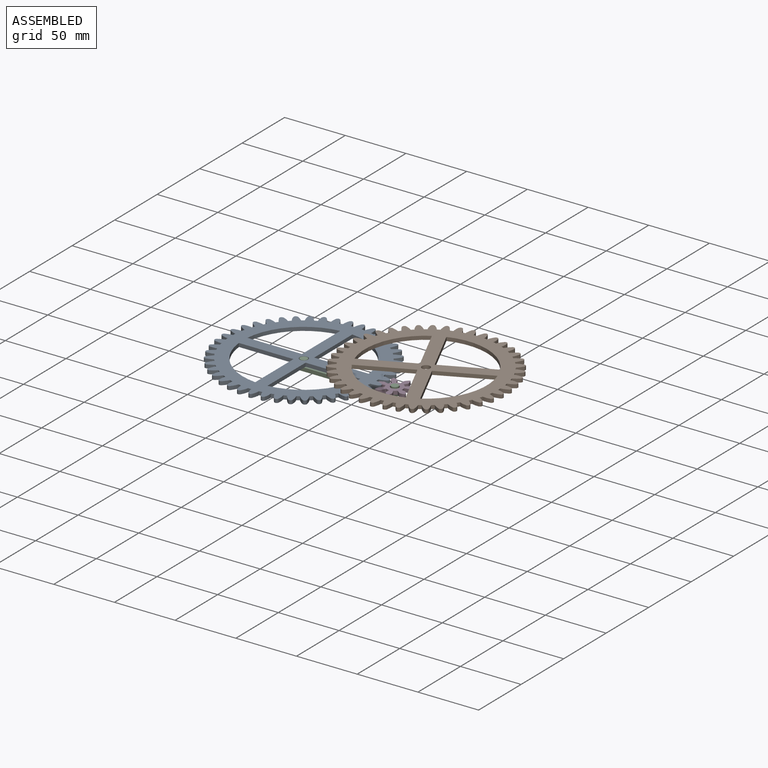
[diagram: assembled view]
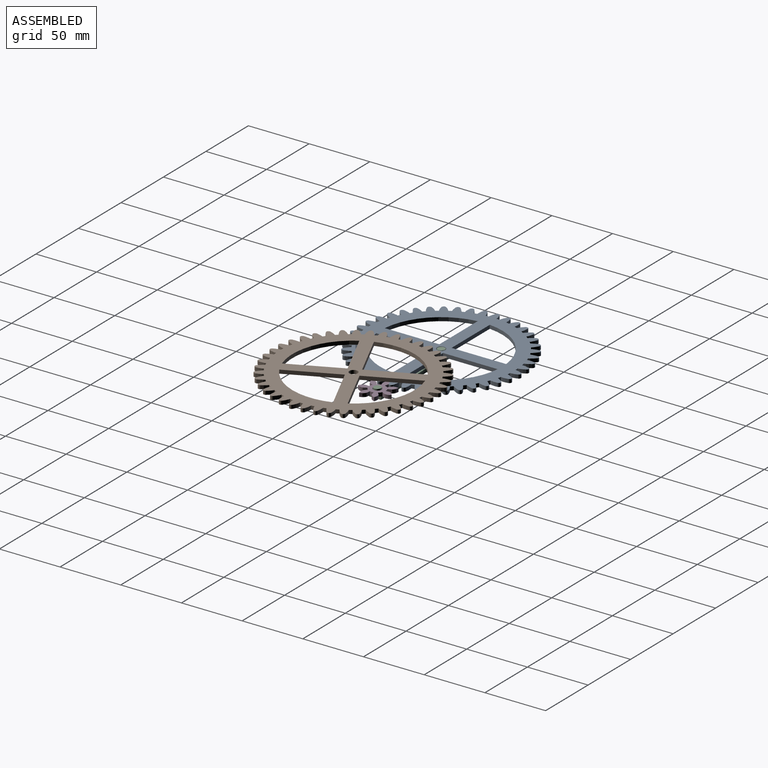
[diagram: assembled view, second angle]
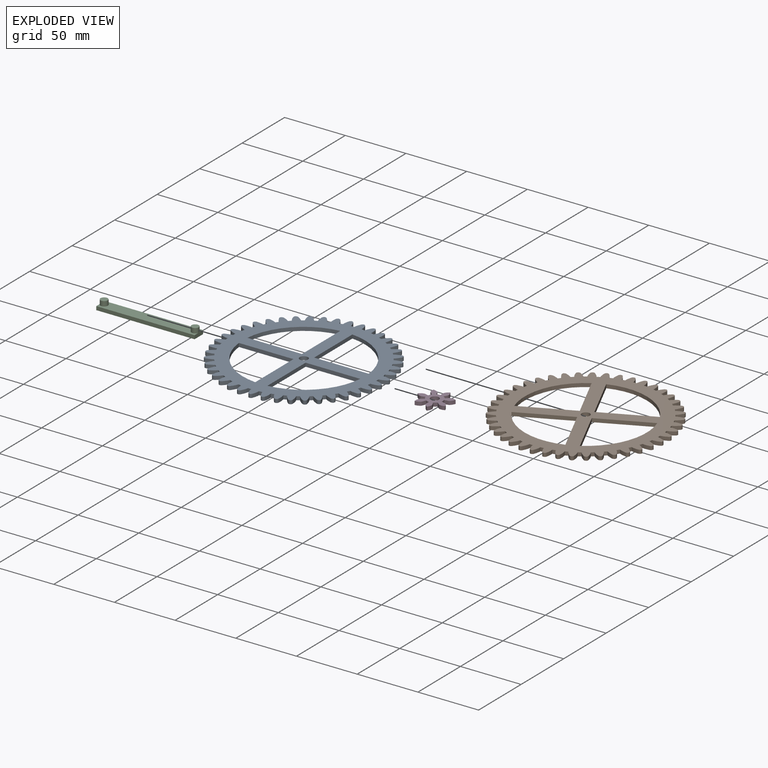
[diagram: exploded view]
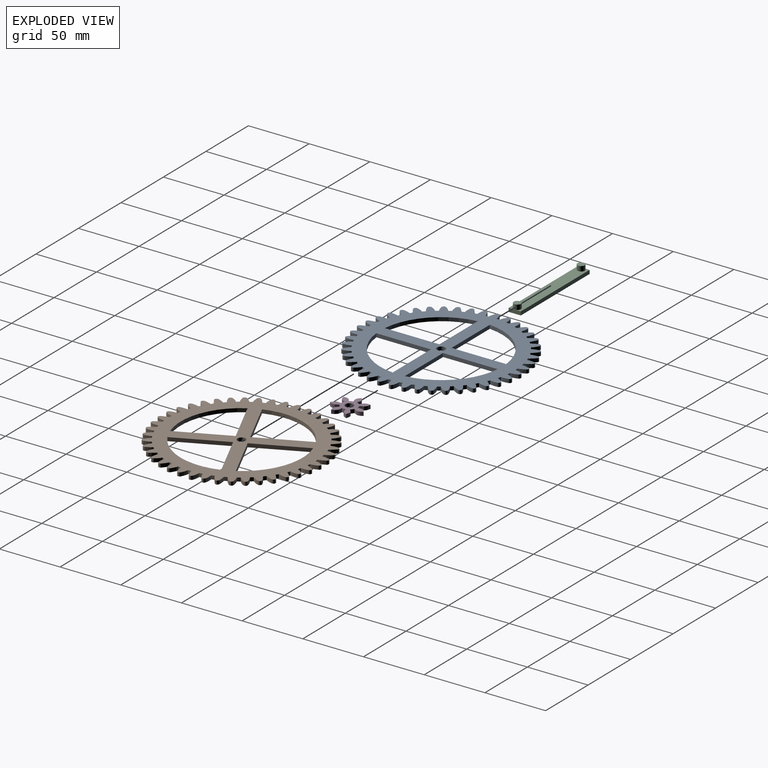
[diagram: exploded view, second angle]
ASSEMBLY  parts=3 mates=2
PART A: 230 faces, bbox 134.8x134.9x3 mm
  f0: plane 134.9x134.81mm, normal (0,0,1), area 6850.2mm2, adj f2,f3,f4,f5,f6,f7,f8,f9
  f1: plane 134.9x134.81mm, normal (0,0,-1), area 6850.2mm2, adj f2,f3,f4,f5,f6,f7,f8,f9
  f2: cylinder r=60.61mm len=3mm, axis (0,0,-1), area 7.9mm2, adj f0,f1,f210,f215
  f3: cylinder r=60.61mm len=3mm, axis (0,0,-1), area 7.9mm2, adj f0,f1,f206,f211
  f4: cylinder r=60.61mm len=3mm, axis (0,0,-1), area 7.9mm2, adj f0,f1,f202,f207
  f5: cylinder r=60.61mm len=3mm, axis (0,0,-1), area 7.9mm2, adj f0,f1,f198,f203
  f6: cylinder r=60.61mm len=3mm, axis (0,0,-1), area 7.9mm2, adj f0,f1,f194,f199
  f7: cylinder r=60.61mm len=3mm, axis (0,0,-1), area 7.9mm2, adj f0,f1,f190,f195
  f8: cylinder r=60.61mm len=3mm, axis (0,0,-1), area 7.9mm2, adj f0,f1,f186,f191
  f9: cylinder r=60.61mm len=3mm, axis (0,0,-1), area 7.9mm2, adj f0,f1,f182,f187
  f10: cylinder r=60.61mm len=3mm, axis (0,0,-1), area 7.9mm2, adj f0,f1,f178,f183
  f11: cylinder r=60.61mm len=3mm, axis (0,0,-1), area 7.9mm2, adj f0,f1,f174,f179
  f12: cylinder r=60.61mm len=3mm, axis (0,0,-1), area 7.9mm2, adj f0,f1,f170,f175
  f13: cylinder r=60.61mm len=3mm, axis (0,0,-1), area 7.9mm2, adj f0,f1,f166,f171
  f14: cylinder r=60.61mm len=3mm, axis (0,0,-1), area 7.9mm2, adj f0,f1,f162,f167
  f15: cylinder r=60.61mm len=3mm, axis (0,0,-1), area 7.9mm2, adj f0,f1,f158,f163
  f16: cylinder r=60.61mm len=3mm, axis (0,0,-1), area 7.9mm2, adj f0,f1,f154,f159
  f17: cylinder r=60.61mm len=3mm, axis (0,0,-1), area 7.9mm2, adj f0,f1,f150,f155
  f18: cylinder r=60.61mm len=3mm, axis (0,0,-1), area 7.9mm2, adj f0,f1,f146,f151
  f19: cylinder r=60.61mm len=3mm, axis (0,0,-1), area 7.9mm2, adj f0,f1,f142,f147
  f20: cylinder r=60.61mm len=3mm, axis (0,0,-1), area 7.9mm2, adj f0,f1,f138,f143
  f21: cylinder r=60.61mm len=3mm, axis (0,0,-1), area 7.9mm2, adj f0,f1,f134,f139
  f22: cylinder r=60.61mm len=3mm, axis (0,0,-1), area 7.9mm2, adj f0,f1,f130,f135
  f23: cylinder r=60.61mm len=3mm, axis (0,0,-1), area 7.9mm2, adj f0,f1,f126,f131
  f24: cylinder r=60.61mm len=3mm, axis (0,0,-1), area 7.9mm2, adj f0,f1,f122,f127
  f25: cylinder r=60.61mm len=3mm, axis (0,0,-1), area 7.9mm2, adj f0,f1,f118,f123
  f26: cylinder r=60.61mm len=3mm, axis (0,0,-1), area 7.9mm2, adj f0,f1,f114,f119
  f27: cylinder r=60.61mm len=3mm, axis (0,0,-1), area 7.9mm2, adj f0,f1,f110,f115
  f28: cylinder r=60.61mm len=3mm, axis (0,0,-1), area 7.9mm2, adj f0,f1,f106,f111
  f29: cylinder r=60.61mm len=3mm, axis (0,0,-1), area 7.9mm2, adj f0,f1,f102,f107
  f30: cylinder r=60.61mm len=3mm, axis (0,0,-1), area 7.9mm2, adj f0,f1,f98,f103
  f31: cylinder r=60.61mm len=3mm, axis (0,0,-1), area 7.9mm2, adj f0,f1,f94,f99
  f32: cylinder r=60.61mm len=3mm, axis (0,0,-1), area 7.9mm2, adj f0,f1,f90,f95
  f33: cylinder r=60.61mm len=3mm, axis (0,0,-1), area 7.9mm2, adj f0,f1,f86,f91
  f34: cylinder r=60.61mm len=3mm, axis (0,0,-1), area 7.9mm2, adj f0,f1,f82,f87
  f35: cylinder r=60.61mm len=3mm, axis (0,0,-1), area 7.9mm2, adj f0,f1,f78,f83
  f36: cylinder r=60.61mm len=3mm, axis (0,0,-1), area 7.9mm2, adj f0,f1,f74,f79
  f37: cylinder r=60.61mm len=3mm, axis (0,0,-1), area 7.9mm2, adj f0,f1,f70,f75
  f38: cylinder r=60.61mm len=3mm, axis (0,0,-1), area 7.9mm2, adj f0,f1,f66,f71
  f39: cylinder r=60.61mm len=3mm, axis (0,0,-1), area 7.9mm2, adj f0,f1,f62,f67
  f40: cylinder r=60.61mm len=3mm, axis (0,0,-1), area 7.9mm2, adj f0,f1,f58,f63
  f41: cylinder r=60.61mm len=3mm, axis (0,0,-1), area 7.9mm2, adj f0,f1,f54,f59
  f42: cylinder r=60.61mm len=3mm, axis (0,0,-1), area 7.9mm2, adj f0,f1,f50,f55
  f43: cylinder r=60.61mm len=3mm, axis (0,0,-1), area 7.9mm2, adj f0,f1,f46,f51
  f44: cylinder r=60.61mm len=3mm, axis (0,0,-1), area 7.9mm2, adj f0,f1,f47,f214
  f45: cylinder r=3.4mm len=6.8mm, axis (0,0,-1), area 64.1mm2, adj f0,f1
  f46: extruded ~5.78x3mm, area 17.8mm2, adj f0,f1,f43,f49
  f47: extruded ~5.68x3mm, area 17.8mm2, adj f0,f1,f44,f48
  f48: cylinder r=2mm len=3mm, axis (0,0,-1), area 6.6mm2, adj f0,f1,f47,f49
  f49: cylinder r=2mm len=3mm, axis (0,0,-1), area 6.6mm2, adj f0,f1,f46,f48
  f50: extruded ~5.9x3mm, area 17.8mm2, adj f0,f1,f42,f53
  f51: extruded ~5.38x3mm, area 17.8mm2, adj f0,f1,f43,f52
  f52: cylinder r=2mm len=3mm, axis (0,0,-1), area 6.6mm2, adj f0,f1,f51,f53
  f53: cylinder r=2mm len=3mm, axis (0,0,-1), area 6.6mm2, adj f0,f1,f50,f52
  f54: extruded ~5.88x3mm, area 17.8mm2, adj f0,f1,f41,f57
  f55: extruded ~4.96x3.2mm, area 17.8mm2, adj f0,f1,f42,f56
  f56: cylinder r=2mm len=3mm, axis (0,0,-1), area 6.6mm2, adj f0,f1,f55,f57
  f57: cylinder r=2mm len=3mm, axis (0,0,-1), area 6.6mm2, adj f0,f1,f54,f56
  f58: extruded ~5.75x3mm, area 17.8mm2, adj f0,f1,f40,f61
  f59: extruded ~4.45x3.89mm, area 17.8mm2, adj f0,f1,f41,f60
  f60: cylinder r=2mm len=3mm, axis (0,0,-1), area 6.6mm2, adj f0,f1,f59,f61
  f61: cylinder r=2mm len=3mm, axis (0,0,-1), area 6.6mm2, adj f0,f1,f58,f60
  f62: extruded ~5.49x3mm, area 17.8mm2, adj f0,f1,f39,f65
  f63: extruded ~4.49x3.83mm, area 17.8mm2, adj f0,f1,f40,f64
  f64: cylinder r=2mm len=3mm, axis (0,0,-1), area 6.6mm2, adj f0,f1,f63,f65
  f65: cylinder r=2mm len=3mm, axis (0,0,-1), area 6.6mm2, adj f0,f1,f62,f64
  f66: extruded ~5.12x3mm, area 17.8mm2, adj f0,f1,f38,f69
  f67: extruded ~5x3.14mm, area 17.8mm2, adj f0,f1,f39,f68
  f68: cylinder r=2mm len=3mm, axis (0,0,-1), area 6.6mm2, adj f0,f1,f67,f69
  f69: cylinder r=2mm len=3mm, axis (0,0,-1), area 6.6mm2, adj f0,f1,f66,f68
  f70: extruded ~4.63x3.67mm, area 17.8mm2, adj f0,f1,f37,f73
  f71: extruded ~5.41x3mm, area 17.8mm2, adj f0,f1,f38,f72
  f72: cylinder r=2mm len=3mm, axis (0,0,-1), area 6.6mm2, adj f0,f1,f71,f73
  f73: cylinder r=2mm len=3mm, axis (0,0,-1), area 6.6mm2, adj f0,f1,f70,f72
  f74: extruded ~4.3x4.05mm, area 17.8mm2, adj f0,f1,f36,f77
  f75: extruded ~5.7x3mm, area 17.8mm2, adj f0,f1,f37,f76
  f76: cylinder r=2mm len=3mm, axis (0,0,-1), area 6.6mm2, adj f0,f1,f75,f77
  f77: cylinder r=2mm len=3mm, axis (0,0,-1), area 6.6mm2, adj f0,f1,f74,f76
  f78: extruded ~4.84x3.38mm, area 17.8mm2, adj f0,f1,f35,f81
  f79: extruded ~5.86x3mm, area 17.8mm2, adj f0,f1,f36,f80
  f80: cylinder r=2mm len=3mm, axis (0,0,-1), area 6.6mm2, adj f0,f1,f79,f81
  f81: cylinder r=2mm len=3mm, axis (0,0,-1), area 6.6mm2, adj f0,f1,f78,f80
  f82: extruded ~5.28x3mm, area 17.8mm2, adj f0,f1,f34,f85
  f83: extruded ~5.9x3mm, area 17.8mm2, adj f0,f1,f35,f84
  f84: cylinder r=2mm len=3mm, axis (0,0,-1), area 6.6mm2, adj f0,f1,f83,f85
  f85: cylinder r=2mm len=3mm, axis (0,0,-1), area 6.6mm2, adj f0,f1,f82,f84
  f86: extruded ~5.61x3mm, area 17.8mm2, adj f0,f1,f33,f89
  f87: extruded ~5.82x3mm, area 17.8mm2, adj f0,f1,f34,f88
  f88: cylinder r=2mm len=3mm, axis (0,0,-1), area 6.6mm2, adj f0,f1,f87,f89
  f89: cylinder r=2mm len=3mm, axis (0,0,-1), area 6.6mm2, adj f0,f1,f86,f88
  f90: extruded ~5.82x3mm, area 17.8mm2, adj f0,f1,f32,f93
  f91: extruded ~5.61x3mm, area 17.8mm2, adj f0,f1,f33,f92
  f92: cylinder r=2mm len=3mm, axis (0,0,-1), area 6.6mm2, adj f0,f1,f91,f93
  f93: cylinder r=2mm len=3mm, axis (0,0,-1), area 6.6mm2, adj f0,f1,f90,f92
  f94: extruded ~5.9x3mm, area 17.8mm2, adj f0,f1,f31,f97
  f95: extruded ~5.28x3mm, area 17.8mm2, adj f0,f1,f32,f96
  f96: cylinder r=2mm len=3mm, axis (0,0,-1), area 6.6mm2, adj f0,f1,f95,f97
  f97: cylinder r=2mm len=3mm, axis (0,0,-1), area 6.6mm2, adj f0,f1,f94,f96
  f98: extruded ~5.86x3mm, area 17.8mm2, adj f0,f1,f30,f101
  f99: extruded ~4.84x3.38mm, area 17.8mm2, adj f0,f1,f31,f100
  f100: cylinder r=2mm len=3mm, axis (0,0,-1), area 6.6mm2, adj f0,f1,f99,f101
  f101: cylinder r=2mm len=3mm, axis (0,0,-1), area 6.6mm2, adj f0,f1,f98,f100
  f102: extruded ~5.7x3mm, area 17.8mm2, adj f0,f1,f29,f105
  f103: extruded ~4.3x4.05mm, area 17.8mm2, adj f0,f1,f30,f104
  f104: cylinder r=2mm len=3mm, axis (0,0,-1), area 6.6mm2, adj f0,f1,f103,f105
  f105: cylinder r=2mm len=3mm, axis (0,0,-1), area 6.6mm2, adj f0,f1,f102,f104
  f106: extruded ~5.41x3mm, area 17.8mm2, adj f0,f1,f28,f109
  f107: extruded ~4.63x3.67mm, area 17.8mm2, adj f0,f1,f29,f108
  f108: cylinder r=2mm len=3mm, axis (0,0,-1), area 6.6mm2, adj f0,f1,f107,f109
  f109: cylinder r=2mm len=3mm, axis (0,0,-1), area 6.6mm2, adj f0,f1,f106,f108
  f110: extruded ~5x3.14mm, area 17.8mm2, adj f0,f1,f27,f113
  f111: extruded ~5.12x3mm, area 17.8mm2, adj f0,f1,f28,f112
  f112: cylinder r=2mm len=3mm, axis (0,0,-1), area 6.6mm2, adj f0,f1,f111,f113
  f113: cylinder r=2mm len=3mm, axis (0,0,-1), area 6.6mm2, adj f0,f1,f110,f112
  f114: extruded ~4.49x3.83mm, area 17.8mm2, adj f0,f1,f26,f117
  f115: extruded ~5.49x3mm, area 17.8mm2, adj f0,f1,f27,f116
  f116: cylinder r=2mm len=3mm, axis (0,0,-1), area 6.6mm2, adj f0,f1,f115,f117
  f117: cylinder r=2mm len=3mm, axis (0,0,-1), area 6.6mm2, adj f0,f1,f114,f116
  f118: extruded ~4.45x3.89mm, area 17.8mm2, adj f0,f1,f25,f121
  f119: extruded ~5.75x3mm, area 17.8mm2, adj f0,f1,f26,f120
  f120: cylinder r=2mm len=3mm, axis (0,0,-1), area 6.6mm2, adj f0,f1,f119,f121
  f121: cylinder r=2mm len=3mm, axis (0,0,-1), area 6.6mm2, adj f0,f1,f118,f120
  f122: extruded ~4.96x3.2mm, area 17.8mm2, adj f0,f1,f24,f125
  f123: extruded ~5.88x3mm, area 17.8mm2, adj f0,f1,f25,f124
  f124: cylinder r=2mm len=3mm, axis (0,0,-1), area 6.6mm2, adj f0,f1,f123,f125
  f125: cylinder r=2mm len=3mm, axis (0,0,-1), area 6.6mm2, adj f0,f1,f122,f124
  f126: extruded ~5.38x3mm, area 17.8mm2, adj f0,f1,f23,f129
  f127: extruded ~5.9x3mm, area 17.8mm2, adj f0,f1,f24,f128
  f128: cylinder r=2mm len=3mm, axis (0,0,-1), area 6.6mm2, adj f0,f1,f127,f129
  f129: cylinder r=2mm len=3mm, axis (0,0,-1), area 6.6mm2, adj f0,f1,f126,f128
  f130: extruded ~5.68x3mm, area 17.8mm2, adj f0,f1,f22,f133
  f131: extruded ~5.78x3mm, area 17.8mm2, adj f0,f1,f23,f132
  f132: cylinder r=2mm len=3mm, axis (0,0,-1), area 6.6mm2, adj f0,f1,f131,f133
  f133: cylinder r=2mm len=3mm, axis (0,0,-1), area 6.6mm2, adj f0,f1,f130,f132
  f134: extruded ~5.85x3mm, area 17.8mm2, adj f0,f1,f21,f137
  f135: extruded ~5.54x3mm, area 17.8mm2, adj f0,f1,f22,f136
  f136: cylinder r=2mm len=3mm, axis (0,0,-1), area 6.6mm2, adj f0,f1,f135,f137
  f137: cylinder r=2mm len=3mm, axis (0,0,-1), area 6.6mm2, adj f0,f1,f134,f136
  f138: extruded ~5.91x3mm, area 17.8mm2, adj f0,f1,f20,f141
  f139: extruded ~5.18x3mm, area 17.8mm2, adj f0,f1,f21,f140
  f140: cylinder r=2mm len=3mm, axis (0,0,-1), area 6.6mm2, adj f0,f1,f139,f141
  f141: cylinder r=2mm len=3mm, axis (0,0,-1), area 6.6mm2, adj f0,f1,f138,f140
  f142: extruded ~5.83x3mm, area 17.8mm2, adj f0,f1,f19,f145
  f143: extruded ~4.72x3.55mm, area 17.8mm2, adj f0,f1,f20,f144
  f144: cylinder r=2mm len=3mm, axis (0,0,-1), area 6.6mm2, adj f0,f1,f143,f145
  f145: cylinder r=2mm len=3mm, axis (0,0,-1), area 6.6mm2, adj f0,f1,f142,f144
  f146: extruded ~5.63x3mm, area 17.8mm2, adj f0,f1,f18,f149
  f147: extruded ~4.2x4.15mm, area 17.8mm2, adj f0,f1,f19,f148
  f148: cylinder r=2mm len=3mm, axis (0,0,-1), area 6.6mm2, adj f0,f1,f147,f149
  f149: cylinder r=2mm len=3mm, axis (0,0,-1), area 6.6mm2, adj f0,f1,f146,f148
  f150: extruded ~5.32x3mm, area 17.8mm2, adj f0,f1,f17,f153
  f151: extruded ~4.76x3.49mm, area 17.8mm2, adj f0,f1,f18,f152
  f152: cylinder r=2mm len=3mm, axis (0,0,-1), area 6.6mm2, adj f0,f1,f151,f153
  f153: cylinder r=2mm len=3mm, axis (0,0,-1), area 6.6mm2, adj f0,f1,f150,f152
  f154: extruded ~4.89x3.32mm, area 17.8mm2, adj f0,f1,f16,f157
  f155: extruded ~5.22x3mm, area 17.8mm2, adj f0,f1,f17,f156
  f156: cylinder r=2mm len=3mm, axis (0,0,-1), area 6.6mm2, adj f0,f1,f155,f157
  f157: cylinder r=2mm len=3mm, axis (0,0,-1), area 6.6mm2, adj f0,f1,f154,f156
  f158: extruded ~4.35x3.99mm, area 17.8mm2, adj f0,f1,f15,f161
  f159: extruded ~5.57x3mm, area 17.8mm2, adj f0,f1,f16,f160
  f160: cylinder r=2mm len=3mm, axis (0,0,-1), area 6.6mm2, adj f0,f1,f159,f161
  f161: cylinder r=2mm len=3mm, axis (0,0,-1), area 6.6mm2, adj f0,f1,f158,f160
  f162: extruded ~4.58x3.72mm, area 17.8mm2, adj f0,f1,f14,f165
  f163: extruded ~5.79x3mm, area 17.8mm2, adj f0,f1,f15,f164
  f164: cylinder r=2mm len=3mm, axis (0,0,-1), area 6.6mm2, adj f0,f1,f163,f165
  f165: cylinder r=2mm len=3mm, axis (0,0,-1), area 6.6mm2, adj f0,f1,f162,f164
  f166: extruded ~5.08x3.02mm, area 17.8mm2, adj f0,f1,f13,f169
  f167: extruded ~5.9x3mm, area 17.8mm2, adj f0,f1,f14,f168
  f168: cylinder r=2mm len=3mm, axis (0,0,-1), area 6.6mm2, adj f0,f1,f167,f169
  f169: cylinder r=2mm len=3mm, axis (0,0,-1), area 6.6mm2, adj f0,f1,f166,f168
  f170: extruded ~5.46x3mm, area 17.8mm2, adj f0,f1,f12,f173
  f171: extruded ~5.88x3mm, area 17.8mm2, adj f0,f1,f13,f172
  f172: cylinder r=2mm len=3mm, axis (0,0,-1), area 6.6mm2, adj f0,f1,f171,f173
  f173: cylinder r=2mm len=3mm, axis (0,0,-1), area 6.6mm2, adj f0,f1,f170,f172
  f174: extruded ~5.73x3mm, area 17.8mm2, adj f0,f1,f11,f177
  f175: extruded ~5.73x3mm, area 17.8mm2, adj f0,f1,f12,f176
  f176: cylinder r=2mm len=3mm, axis (0,0,-1), area 6.6mm2, adj f0,f1,f175,f177
  f177: cylinder r=2mm len=3mm, axis (0,0,-1), area 6.6mm2, adj f0,f1,f174,f176
  f178: extruded ~5.88x3mm, area 17.8mm2, adj f0,f1,f10,f181
  f179: extruded ~5.46x3mm, area 17.8mm2, adj f0,f1,f11,f180
  f180: cylinder r=2mm len=3mm, axis (0,0,-1), area 6.6mm2, adj f0,f1,f179,f181
  f181: cylinder r=2mm len=3mm, axis (0,0,-1), area 6.6mm2, adj f0,f1,f178,f180
  f182: extruded ~5.9x3mm, area 17.8mm2, adj f0,f1,f9,f185
  f183: extruded ~5.08x3.02mm, area 17.8mm2, adj f0,f1,f10,f184
  f184: cylinder r=2mm len=3mm, axis (0,0,-1), area 6.6mm2, adj f0,f1,f183,f185
  f185: cylinder r=2mm len=3mm, axis (0,0,-1), area 6.6mm2, adj f0,f1,f182,f184
  f186: extruded ~5.79x3mm, area 17.8mm2, adj f0,f1,f8,f189
  f187: extruded ~4.58x3.72mm, area 17.8mm2, adj f0,f1,f9,f188
  f188: cylinder r=2mm len=3mm, axis (0,0,-1), area 6.6mm2, adj f0,f1,f187,f189
  f189: cylinder r=2mm len=3mm, axis (0,0,-1), area 6.6mm2, adj f0,f1,f186,f188
  f190: extruded ~5.57x3mm, area 17.8mm2, adj f0,f1,f7,f193
  f191: extruded ~4.35x3.99mm, area 17.8mm2, adj f0,f1,f8,f192
  f192: cylinder r=2mm len=3mm, axis (0,0,-1), area 6.6mm2, adj f0,f1,f191,f193
  f193: cylinder r=2mm len=3mm, axis (0,0,-1), area 6.6mm2, adj f0,f1,f190,f192
  f194: extruded ~5.22x3mm, area 17.8mm2, adj f0,f1,f6,f197
  f195: extruded ~4.89x3.32mm, area 17.8mm2, adj f0,f1,f7,f196
  f196: cylinder r=2mm len=3mm, axis (0,0,-1), area 6.6mm2, adj f0,f1,f195,f197
  f197: cylinder r=2mm len=3mm, axis (0,0,-1), area 6.6mm2, adj f0,f1,f194,f196
  f198: extruded ~4.76x3.49mm, area 17.8mm2, adj f0,f1,f5,f201
  f199: extruded ~5.32x3mm, area 17.8mm2, adj f0,f1,f6,f200
  f200: cylinder r=2mm len=3mm, axis (0,0,-1), area 6.6mm2, adj f0,f1,f199,f201
  f201: cylinder r=2mm len=3mm, axis (0,0,-1), area 6.6mm2, adj f0,f1,f198,f200
  f202: extruded ~4.2x4.15mm, area 17.8mm2, adj f0,f1,f4,f205
  f203: extruded ~5.63x3mm, area 17.8mm2, adj f0,f1,f5,f204
  f204: cylinder r=2mm len=3mm, axis (0,0,-1), area 6.6mm2, adj f0,f1,f203,f205
  f205: cylinder r=2mm len=3mm, axis (0,0,-1), area 6.6mm2, adj f0,f1,f202,f204
  f206: extruded ~4.72x3.55mm, area 17.8mm2, adj f0,f1,f3,f209
  f207: extruded ~5.83x3mm, area 17.8mm2, adj f0,f1,f4,f208
  f208: cylinder r=2mm len=3mm, axis (0,0,-1), area 6.6mm2, adj f0,f1,f207,f209
  f209: cylinder r=2mm len=3mm, axis (0,0,-1), area 6.6mm2, adj f0,f1,f206,f208
  f210: extruded ~5.18x3mm, area 17.8mm2, adj f0,f1,f2,f213
  f211: extruded ~5.91x3mm, area 17.8mm2, adj f0,f1,f3,f212
  f212: cylinder r=2mm len=3mm, axis (0,0,-1), area 6.6mm2, adj f0,f1,f211,f213
  f213: cylinder r=2mm len=3mm, axis (0,0,-1), area 6.6mm2, adj f0,f1,f210,f212
  f214: extruded ~5.54x3mm, area 17.8mm2, adj f0,f1,f44,f217
  f215: extruded ~5.85x3mm, area 17.8mm2, adj f0,f1,f2,f216
  f216: cylinder r=2mm len=3mm, axis (0,0,-1), area 6.6mm2, adj f0,f1,f215,f217
  f217: cylinder r=2mm len=3mm, axis (0,0,-1), area 6.6mm2, adj f0,f1,f214,f216
  f218: plane 45x3mm, normal (0,1,0), area 135mm2, adj f0,f1,f219,f220
  f219: cylinder r=50mm len=45mm, axis (0,0,-1), area 206.9mm2, adj f0,f1,f218,f220
  f220: plane 45x3mm, normal (1,0,0), area 135mm2, adj f0,f1,f218,f219
  f221: plane 45x3mm, normal (0,1,0), area 135mm2, adj f0,f1,f222,f223
  f222: plane 45x3mm, normal (-1,0,0), area 135mm2, adj f0,f1,f221,f223
  f223: cylinder r=50mm len=45mm, axis (0,0,-1), area 206.9mm2, adj f0,f1,f221,f222
  f224: plane 45x3mm, normal (-1,0,0), area 135mm2, adj f0,f1,f225,f226
  f225: plane 45x3mm, normal (0,-1,0), area 135mm2, adj f0,f1,f224,f226
  f226: cylinder r=50mm len=45mm, axis (0,0,-1), area 206.9mm2, adj f0,f1,f224,f225
  f227: plane 45x3mm, normal (0,-1,0), area 135mm2, adj f0,f1,f228,f229
  f228: plane 45x3mm, normal (1,0,0), area 135mm2, adj f0,f1,f227,f229
  f229: cylinder r=50mm len=45mm, axis (0,0,-1), area 206.9mm2, adj f0,f1,f227,f228
PART B: 10 faces, bbox 81x10x7 mm
  f0: plane 10x3mm, normal (-1,0,0), area 30mm2, adj f1,f3,f4,f5
  f1: plane 81x3mm, normal (0,-1,0), area 243mm2, adj f0,f2,f4,f5
  f2: plane 10x3mm, normal (1,0,0), area 30mm2, adj f1,f3,f4,f5
  f3: plane 81x3mm, normal (0,1,0), area 243mm2, adj f0,f2,f4,f5
  f4: plane 81x10mm, normal (0,0,1), area 753.5mm2, adj f0,f1,f2,f3,f6,f8
  f5: plane 81x10mm, normal (0,0,-1), area 810mm2, adj f0,f1,f2,f3
  f6: cylinder r=3mm len=6mm, axis (0,0,-1), area 75.4mm2, adj f4,f7
  f7: plane 6x6mm, normal (0,0,1), area 28.3mm2, adj f6
  f8: cylinder r=3mm len=6mm, axis (0,0,-1), area 75.4mm2, adj f4,f9
  f9: plane 6x6mm, normal (0,0,1), area 28.3mm2, adj f8
PART C: 52 faces, bbox 27.1x27.8x3 mm
  f0: cylinder r=6.75mm len=3mm, axis (0,0,-1), area 9.4mm2, adj f8,f9,f41,f48
  f1: cylinder r=6.75mm len=3mm, axis (0,0,-1), area 9.4mm2, adj f8,f9,f35,f42
  f2: cylinder r=6.75mm len=3.03mm, axis (0,0,-1), area 9.4mm2, adj f8,f9,f29,f36
  f3: cylinder r=6.75mm len=3mm, axis (0,0,-1), area 9.4mm2, adj f8,f9,f23,f30
  f4: cylinder r=6.75mm len=3.11mm, axis (0,0,-1), area 9.4mm2, adj f8,f9,f17,f24
  f5: cylinder r=6.75mm len=3mm, axis (0,0,-1), area 9.4mm2, adj f8,f9,f11,f18
  f6: cylinder r=6.75mm len=3.03mm, axis (0,0,-1), area 9.4mm2, adj f8,f9,f12,f47
  f7: cylinder r=3.4mm len=6.8mm, axis (0,0,-1), area 64.1mm2, adj f8,f9
  f8: plane 27.77x27.08mm, normal (0,0,1), area 286.8mm2, adj f0,f1,f2,f3,f4,f5,f6,f7
  f9: plane 27.77x27.08mm, normal (0,0,-1), area 286.8mm2, adj f0,f1,f2,f3,f4,f5,f6,f7
  f10: extruded ~4.68x3mm, area 15mm2, adj f8,f9,f13,f14
  f11: plane 3x2.76mm, normal (-0.88,-0.48,0), area 9.5mm2, adj f5,f8,f9,f14
  f12: plane 3.15x3mm, normal (1,-0.05,0), area 9.5mm2, adj f6,f8,f9,f15
  f13: extruded ~3.63x3.25mm, area 15mm2, adj f8,f9,f10,f15
  f14: cylinder r=1mm len=3mm, axis (0,0,-1), area 1mm2, adj f8,f9,f10,f11
  f15: cylinder r=1mm len=3mm, axis (0,0,-1), area 1mm2, adj f8,f9,f12,f13
  f16: extruded ~3.97x3mm, area 15mm2, adj f8,f9,f19,f20
  f17: plane 3.11x3mm, normal (-0.17,-0.99,0), area 9.5mm2, adj f4,f8,f9,f20
  f18: plane 3x2.35mm, normal (0.67,0.75,0), area 9.5mm2, adj f5,f8,f9,f21
  f19: extruded ~4.86x3mm, area 15mm2, adj f8,f9,f16,f21
  f20: cylinder r=1mm len=3mm, axis (0,0,-1), area 1mm2, adj f8,f9,f16,f17
  f21: cylinder r=1mm len=3mm, axis (0,0,-1), area 1mm2, adj f8,f9,f18,f19
  f22: extruded ~4.86x3mm, area 15mm2, adj f8,f9,f25,f26
  f23: plane 3x2.35mm, normal (0.67,-0.75,0), area 9.5mm2, adj f3,f8,f9,f26
  f24: plane 3.11x3mm, normal (-0.17,0.99,0), area 9.5mm2, adj f4,f8,f9,f27
  f25: extruded ~3.97x3mm, area 15mm2, adj f8,f9,f22,f27
  f26: cylinder r=1mm len=3mm, axis (0,0,-1), area 1mm2, adj f8,f9,f22,f23
  f27: cylinder r=1mm len=3mm, axis (0,0,-1), area 1mm2, adj f8,f9,f24,f25
  f28: extruded ~3.63x3.25mm, area 15mm2, adj f8,f9,f31,f32
  f29: plane 3.15x3mm, normal (1,0.05,0), area 9.5mm2, adj f2,f8,f9,f32
  f30: plane 3x2.76mm, normal (-0.88,0.48,0), area 9.5mm2, adj f3,f8,f9,f33
  f31: extruded ~4.68x3mm, area 15mm2, adj f8,f9,f28,f33
  f32: cylinder r=1mm len=3mm, axis (0,0,-1), area 1mm2, adj f8,f9,f28,f29
  f33: cylinder r=1mm len=3mm, axis (0,0,-1), area 1mm2, adj f8,f9,f30,f31
  f34: extruded ~4.8x3mm, area 15mm2, adj f8,f9,f37,f38
  f35: plane 3x2.57mm, normal (0.58,0.81,0), area 9.5mm2, adj f1,f8,f9,f38
  f36: plane 3x2.91mm, normal (-0.92,-0.38,0), area 9.5mm2, adj f2,f8,f9,f39
  f37: extruded ~4.5x3mm, area 15mm2, adj f8,f9,f34,f39
  f38: cylinder r=1mm len=3mm, axis (0,0,-1), area 1mm2, adj f8,f9,f34,f35
  f39: cylinder r=1mm len=3mm, axis (0,0,-1), area 1mm2, adj f8,f9,f36,f37
  f40: extruded ~4.26x3mm, area 15mm2, adj f8,f9,f43,f44
  f41: plane 3.03x3mm, normal (-0.28,0.96,0), area 9.5mm2, adj f0,f8,f9,f44
  f42: plane 3.03x3mm, normal (-0.28,-0.96,0), area 9.5mm2, adj f1,f8,f9,f45
  f43: extruded ~4.26x3mm, area 15mm2, adj f8,f9,f40,f45
  f44: cylinder r=1mm len=3mm, axis (0,0,-1), area 1mm2, adj f8,f9,f40,f41
  f45: cylinder r=1mm len=3mm, axis (0,0,-1), area 1mm2, adj f8,f9,f42,f43
  f46: extruded ~4.5x3mm, area 15mm2, adj f8,f9,f49,f50
  f47: plane 3x2.91mm, normal (-0.92,0.38,0), area 9.5mm2, adj f6,f8,f9,f50
  f48: plane 3x2.57mm, normal (0.58,-0.81,0), area 9.5mm2, adj f0,f8,f9,f51
  f49: extruded ~4.8x3mm, area 15mm2, adj f8,f9,f46,f51
  f50: cylinder r=1mm len=3mm, axis (0,0,-1), area 1mm2, adj f8,f9,f46,f47
  f51: cylinder r=1mm len=3mm, axis (0,0,-1), area 1mm2, adj f8,f9,f48,f49
PLACE A rot(axis=(0,0,1),180deg) t=(-35.12,-5.62,-146.6)mm
PLACE B t=(-34.79,90.92,-150.6)mm fixed
PLACE C rot(axis=(0,0,1),180deg) t=(114.88,-5.62,-147.6)mm
MATE slider A.f2 <-> B.f6  axis (0,0,-1) through (-35.12,-5.62,-146.6)mm
MATE slider C.f0 <-> B.f8  axis (0,0,-1) through (39.88,-5.62,-147.6)mm
